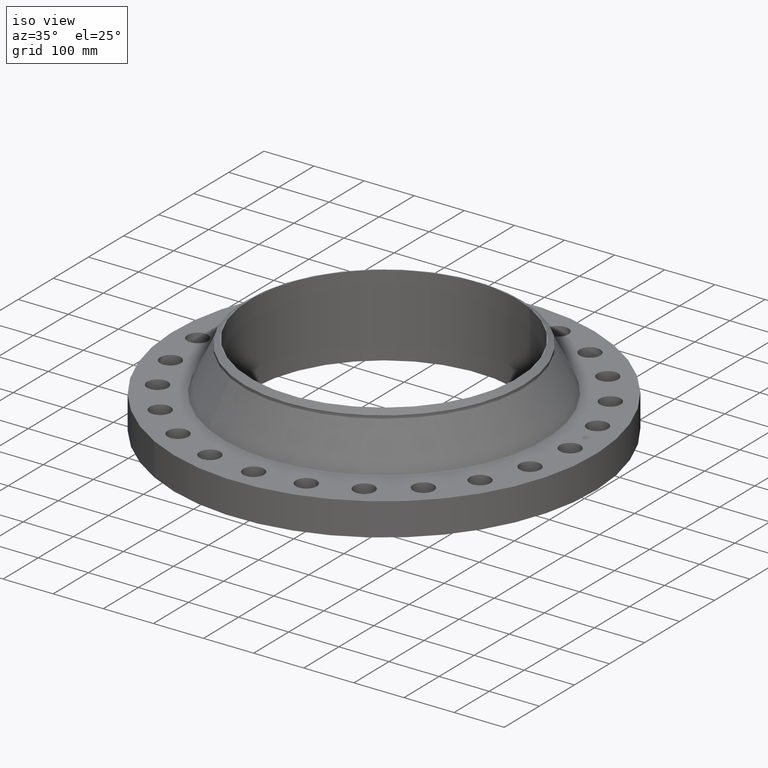
[diagram: clean part render]
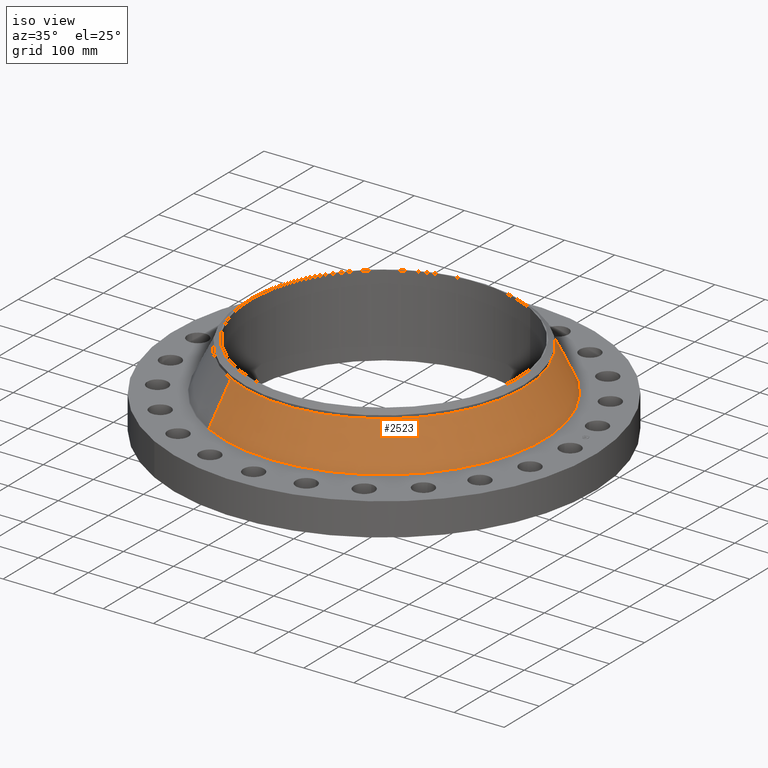
[diagram: same view with one face highlighted and labeled with its STEP entity id]
A machine part, iso view. The second image highlights one B-rep face of the part: STEP entity #2523.
In plain terms, the highlighted conical surface has half-angle 26.213 deg.
Its self-contained STEP definition (entity closure, byte-faithful):
#2315=AXIS2_PLACEMENT_3D('Circle Axis2P3D',#2313,#2314,$) ;
#2510=AXIS2_PLACEMENT_3D('Cone Axis2P3D',#2507,#2508,#2509) ;
#2514=AXIS2_PLACEMENT_3D('Circle Axis2P3D',#2512,#2513,$) ;
#2279=CARTESIAN_POINT('Vertex',(-6.0369338219,-11.0505332378,2.63699474033)) ;
#2286=CARTESIAN_POINT('Vertex',(6.03693382191,11.0505332378,2.63699474032)) ;
#2313=CARTESIAN_POINT('Axis2P3D Location',(0.,0.,2.63699474032)) ;
#2474=CARTESIAN_POINT('Line Origine',(-5.65530737326,-10.3519707093,4.25376511088)) ;
#2478=CARTESIAN_POINT('Vertex',(-5.27368092465,-9.65340818079,5.87053548147)) ;
#2485=CARTESIAN_POINT('Vertex',(5.27368092465,9.6534081808,5.87053548145)) ;
#2488=CARTESIAN_POINT('Line Origine',(5.65530737326,10.3519707093,4.25376511088)) ;
#2507=CARTESIAN_POINT('Axis2P3D Location',(0.,0.,5.87053548147)) ;
#2512=CARTESIAN_POINT('Axis2P3D Location',(0.,0.,5.87053548147)) ;
#2314=DIRECTION('Axis2P3D Direction',(-0.,0.,-0.0393700787402)) ;
#2475=DIRECTION('Vector Direction',(-0.00833729500837,-0.0152613161451,-0.0353211670457)) ;
#2489=DIRECTION('Vector Direction',(0.00833729500837,0.0152613161451,-0.0353211670457)) ;
#2508=DIRECTION('Axis2P3D Direction',(0.,0.,-0.0393700787402)) ;
#2509=DIRECTION('Axis2P3D XDirection',(0.0188750212049,0.0345504945626,0.)) ;
#2513=DIRECTION('Axis2P3D Direction',(-0.,0.,-0.0393700787402)) ;
#2476=VECTOR('Line Direction',#2475,0.0393700787402) ;
#2490=VECTOR('Line Direction',#2489,0.0393700787402) ;
#2518=ORIENTED_EDGE('',*,*,#2317,.F.) ;
#2519=ORIENTED_EDGE('',*,*,#2492,.T.) ;
#2520=ORIENTED_EDGE('',*,*,#2516,.T.) ;
#2521=ORIENTED_EDGE('',*,*,#2480,.F.) ;
#2523=ADVANCED_FACE('PartBody',(#2522),#2511,.T.) ;
#2316=CIRCLE('generated circle',#2315,12.5920155181) ;
#2515=CIRCLE('generated circle',#2514,11.) ;
#2511=CONICAL_SURFACE('Cone',#2510,11.,0.457504354713) ;
#2317=EDGE_CURVE('',#2287,#2280,#2316,.T.) ;
#2480=EDGE_CURVE('',#2280,#2479,#2477,.F.) ;
#2492=EDGE_CURVE('',#2287,#2486,#2491,.F.) ;
#2516=EDGE_CURVE('',#2486,#2479,#2515,.T.) ;
#2517=EDGE_LOOP('',(#2518,#2519,#2520,#2521)) ;
#2522=FACE_OUTER_BOUND('',#2517,.T.) ;
#2477=LINE('Line',#2474,#2476) ;
#2491=LINE('Line',#2488,#2490) ;
#2280=VERTEX_POINT('',#2279) ;
#2287=VERTEX_POINT('',#2286) ;
#2479=VERTEX_POINT('',#2478) ;
#2486=VERTEX_POINT('',#2485) ;